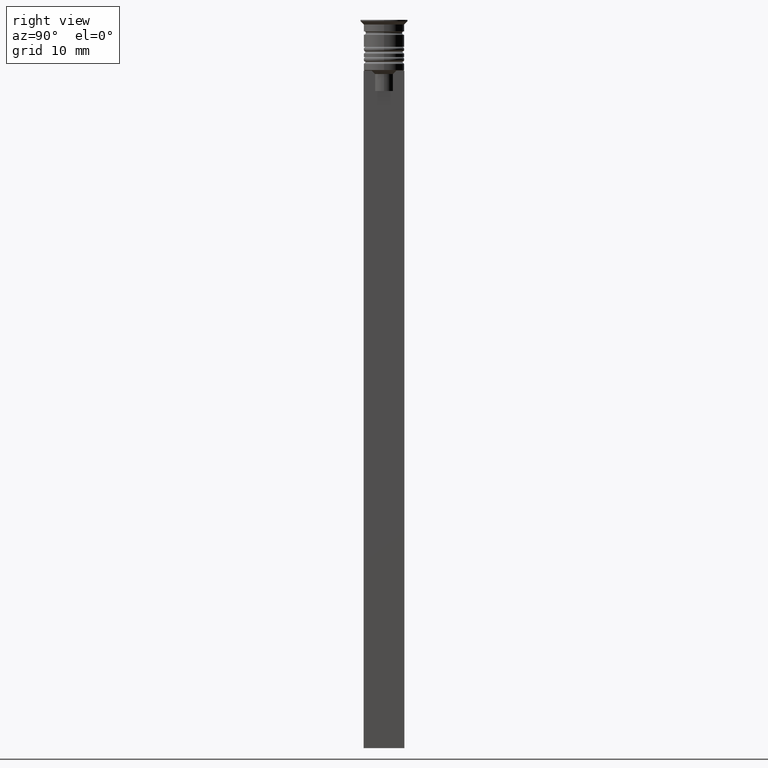
[diagram: clean part render]
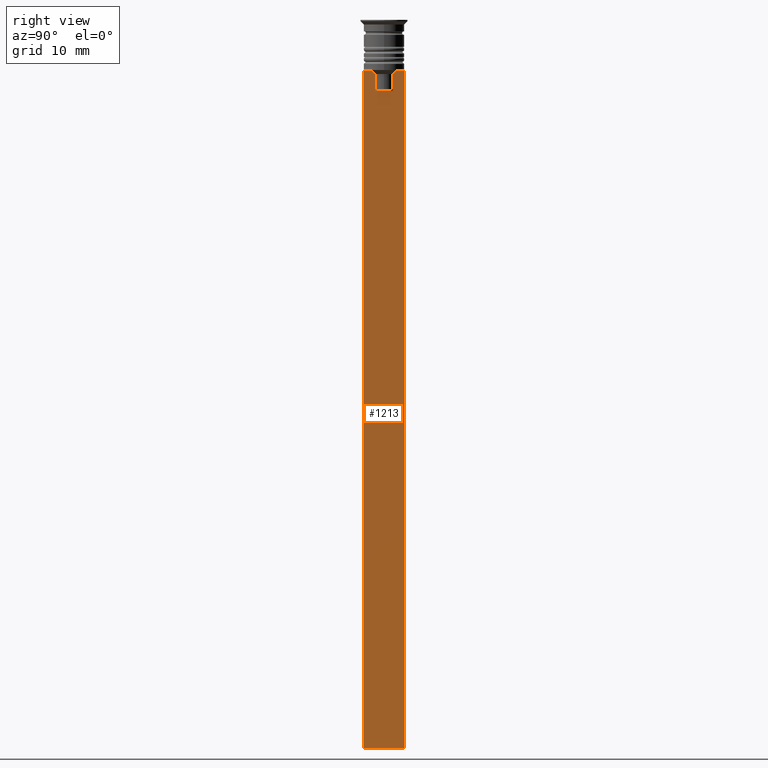
[diagram: same view with one face highlighted and labeled with its STEP entity id]
A machine part, right view. The second image highlights one B-rep face of the part: STEP entity #1213.
In plain terms, the highlighted planar face has unit normal (-1, 0, 0).
Its self-contained STEP definition (entity closure, byte-faithful):
#3 = VERTEX_POINT ( 'NONE', #1524 ) ;
#5 = CARTESIAN_POINT ( 'NONE',  ( 0.4999999999999998890, -1.307669683062199439, -10.49999999999999822 ) ) ;
#8 = DIRECTION ( 'NONE',  ( 0.000000000000000000, 0.000000000000000000, -1.000000000000000000 ) ) ;
#34 = CARTESIAN_POINT ( 'NONE',  ( 0.4999999999999998890, 1.307669683062199439, -8.000000000000000000 ) ) ;
#46 = ORIENTED_EDGE ( 'NONE', *, *, #1244, .T. ) ;
#49 = CARTESIAN_POINT ( 'NONE',  ( 0.4999999999999998890, -1.659011726860414093, -7.667884880598472286 ) ) ;
#119 = FACE_OUTER_BOUND ( 'NONE', #917, .T. ) ;
#126 = LINE ( 'NONE', #1191, #1708 ) ;
#148 = ORIENTED_EDGE ( 'NONE', *, *, #671, .T. ) ;
#154 = CARTESIAN_POINT ( 'NONE',  ( 0.4999999999999998890, -3.000000000000000000, -1.417237469701779329 ) ) ;
#172 = LINE ( 'NONE', #154, #1147 ) ;
#180 = ORIENTED_EDGE ( 'NONE', *, *, #301, .T. ) ;
#194 = CARTESIAN_POINT ( 'NONE',  ( 0.4999999999999998890, -3.000000000000000000, -107.5000000000000000 ) ) ;
#222 = CARTESIAN_POINT ( 'NONE',  ( 0.4999999999999998890, -1.484307477388859153, -7.835011508197190722 ) ) ;
#248 = VERTEX_POINT ( 'NONE', #572 ) ;
#254 = CARTESIAN_POINT ( 'NONE',  ( 0.4999999999999998890, -1.833030277982335754, -7.500000000000000000 ) ) ;
#301 = EDGE_CURVE ( 'NONE', #248, #939, #809, .T. ) ;
#306 = DIRECTION ( 'NONE',  ( 0.000000000000000000, -1.000000000000000000, 0.000000000000000000 ) ) ;
#330 = EDGE_CURVE ( 'NONE', #1102, #2124, #126, .T. ) ;
#334 = AXIS2_PLACEMENT_3D ( 'NONE', #1765, #649, #1180 ) ;
#385 = CARTESIAN_POINT ( 'NONE',  ( 0.4999999999999998890, -1.833030277982335754, -7.500000000000000000 ) ) ;
#392 = ORIENTED_EDGE ( 'NONE', *, *, #1391, .T. ) ;
#448 = VERTEX_POINT ( 'NONE', #465 ) ;
#465 = CARTESIAN_POINT ( 'NONE',  ( 0.4999999999999998890, -2.856571371417139904, -7.500000000000000000 ) ) ;
#468 = PLANE ( 'NONE',  #334 ) ;
#511 = DIRECTION ( 'NONE',  ( 0.000000000000000000, 0.000000000000000000, -1.000000000000000000 ) ) ;
#516 = DIRECTION ( 'NONE',  ( 0.000000000000000000, -1.000000000000000000, 0.000000000000000000 ) ) ;
#522 = CARTESIAN_POINT ( 'NONE',  ( 0.4999999999999998890, 1.307669683062199439, -10.49999999999999822 ) ) ;
#553 = EDGE_CURVE ( 'NONE', #1085, #980, #172, .T. ) ;
#554 = VERTEX_POINT ( 'NONE', #1212 ) ;
#565 = DIRECTION ( 'NONE',  ( 0.000000000000000000, -1.000000000000000000, 0.000000000000000000 ) ) ;
#572 = CARTESIAN_POINT ( 'NONE',  ( 0.4999999999999998890, 1.833030277982335754, -7.500000000000000000 ) ) ;
#594 = ORIENTED_EDGE ( 'NONE', *, *, #553, .T. ) ;
#603 = EDGE_CURVE ( 'NONE', #2282, #1737, #907, .T. ) ;
#632 = EDGE_CURVE ( 'NONE', #1102, #554, #1499, .T. ) ;
#649 = DIRECTION ( 'NONE',  ( -1.000000000000000000, 0.000000000000000000, 0.000000000000000000 ) ) ;
#653 = LINE ( 'NONE', #1202, #1233 ) ;
#656 = EDGE_CURVE ( 'NONE', #980, #554, #2199, .T. ) ;
#666 = CARTESIAN_POINT ( 'NONE',  ( 0.4999999999999998890, 1.307669683062199439, -8.000000000000000000 ) ) ;
#671 = EDGE_CURVE ( 'NONE', #1737, #3, #2037, .T. ) ;
#696 = EDGE_CURVE ( 'NONE', #3, #1336, #1400, .T. ) ;
#699 = VECTOR ( 'NONE', #1451, 1000.000000000000000 ) ;
#716 = CARTESIAN_POINT ( 'NONE',  ( 0.4999999999999998890, 1.307669683062199439, 0.000000000000000000 ) ) ;
#730 = CARTESIAN_POINT ( 'NONE',  ( 0.4999999999999998890, 1.399999999999997691, -10.49999999999999822 ) ) ;
#770 = CARTESIAN_POINT ( 'NONE',  ( 0.4999999999999998890, -3.000000000000000000, -7.500000000000000000 ) ) ;
#809 = B_SPLINE_CURVE_WITH_KNOTS ( 'NONE', 3,
 ( #1746, #1912, #1734, #666 ),
 .UNSPECIFIED., .F., .F.,
 ( 4, 4 ),
 ( 0.003278537493109848298, 0.004003794023484941178 ),
 .UNSPECIFIED. ) ;
#825 = ORIENTED_EDGE ( 'NONE', *, *, #330, .T. ) ;
#837 = DIRECTION ( 'NONE',  ( 0.000000000000000000, -1.000000000000000000, 0.000000000000000000 ) ) ;
#871 = ORIENTED_EDGE ( 'NONE', *, *, #656, .T. ) ;
#907 = LINE ( 'NONE', #730, #699 ) ;
#917 = EDGE_LOOP ( 'NONE', ( #46, #180, #392, #2113, #148, #2287, #1216, #1514, #594, #871, #2257, #825 ) ) ;
#939 = VERTEX_POINT ( 'NONE', #34 ) ;
#978 = CARTESIAN_POINT ( 'NONE',  ( 0.4999999999999998890, 3.000000000000000000, -7.500000000000000000 ) ) ;
#980 = VERTEX_POINT ( 'NONE', #194 ) ;
#998 = EDGE_CURVE ( 'NONE', #448, #1085, #1810, .T. ) ;
#999 = VECTOR ( 'NONE', #1121, 1000.000000000000000 ) ;
#1085 = VERTEX_POINT ( 'NONE', #770 ) ;
#1102 = VERTEX_POINT ( 'NONE', #978 ) ;
#1104 = CARTESIAN_POINT ( 'NONE',  ( 0.4999999999999998890, -1.307669683062199439, 0.000000000000000000 ) ) ;
#1121 = DIRECTION ( 'NONE',  ( 0.000000000000000000, 0.000000000000000000, -1.000000000000000000 ) ) ;
#1130 = CARTESIAN_POINT ( 'NONE',  ( 0.4999999999999998890, -3.000000000000000000, -107.5000000000000000 ) ) ;
#1147 = VECTOR ( 'NONE', #511, 1000.000000000000000 ) ;
#1180 = DIRECTION ( 'NONE',  ( 0.000000000000000000, 0.000000000000000000, 1.000000000000000000 ) ) ;
#1191 = CARTESIAN_POINT ( 'NONE',  ( 0.4999999999999998890, -3.000000000000000000, -7.500000000000000000 ) ) ;
#1202 = CARTESIAN_POINT ( 'NONE',  ( 0.4999999999999998890, -3.000000000000000000, -7.500000000000000000 ) ) ;
#1212 = CARTESIAN_POINT ( 'NONE',  ( 0.4999999999999998890, 3.000000000000000000, -107.5000000000000000 ) ) ;
#1213 = ADVANCED_FACE ( 'NONE', ( #119 ), #468, .F. ) ;
#1216 = ORIENTED_EDGE ( 'NONE', *, *, #2059, .T. ) ;
#1233 = VECTOR ( 'NONE', #837, 1000.000000000000000 ) ;
#1244 = EDGE_CURVE ( 'NONE', #2124, #248, #1915, .T. ) ;
#1273 = CARTESIAN_POINT ( 'NONE',  ( 0.4999999999999998890, -1.307669683062199439, -8.000000000000000000 ) ) ;
#1336 = VERTEX_POINT ( 'NONE', #385 ) ;
#1354 = CARTESIAN_POINT ( 'NONE',  ( 0.4999999999999998890, 2.856571371417139904, -7.500000000000000000 ) ) ;
#1391 = EDGE_CURVE ( 'NONE', #939, #2282, #2139, .T. ) ;
#1400 = B_SPLINE_CURVE_WITH_KNOTS ( 'NONE', 3,
 ( #1273, #222, #49, #254 ),
 .UNSPECIFIED., .F., .F.,
 ( 4, 4 ),
 ( 0.007225659348748082224, 0.007950554640278054835 ),
 .UNSPECIFIED. ) ;
#1451 = DIRECTION ( 'NONE',  ( 0.000000000000000000, -1.000000000000000000, 0.000000000000000000 ) ) ;
#1499 = LINE ( 'NONE', #2210, #999 ) ;
#1510 = DIRECTION ( 'NONE',  ( 0.000000000000000000, 1.000000000000000000, 0.000000000000000000 ) ) ;
#1514 = ORIENTED_EDGE ( 'NONE', *, *, #998, .T. ) ;
#1524 = CARTESIAN_POINT ( 'NONE',  ( 0.4999999999999998890, -1.307669683062199439, -8.000000000000000000 ) ) ;
#1550 = CARTESIAN_POINT ( 'NONE',  ( 0.4999999999999998890, -3.000000000000000000, -7.500000000000000000 ) ) ;
#1708 = VECTOR ( 'NONE', #306, 1000.000000000000000 ) ;
#1734 = CARTESIAN_POINT ( 'NONE',  ( 0.4999999999999998890, 1.484355510416485835, -7.834966642958598015 ) ) ;
#1737 = VERTEX_POINT ( 'NONE', #5 ) ;
#1746 = CARTESIAN_POINT ( 'NONE',  ( 0.4999999999999998890, 1.833030277982335754, -7.500000000000000000 ) ) ;
#1753 = VECTOR ( 'NONE', #565, 1000.000000000000000 ) ;
#1765 = CARTESIAN_POINT ( 'NONE',  ( 0.4999999999999998890, -3.000000000000000000, -1.417237469701779329 ) ) ;
#1810 = LINE ( 'NONE', #2174, #1753 ) ;
#1867 = VECTOR ( 'NONE', #8, 1000.000000000000000 ) ;
#1912 = CARTESIAN_POINT ( 'NONE',  ( 0.4999999999999998890, 1.659046061654642967, -7.667851756010362507 ) ) ;
#1915 = LINE ( 'NONE', #1550, #1944 ) ;
#1944 = VECTOR ( 'NONE', #516, 1000.000000000000000 ) ;
#1974 = VECTOR ( 'NONE', #1510, 1000.000000000000000 ) ;
#2037 = LINE ( 'NONE', #1104, #2127 ) ;
#2059 = EDGE_CURVE ( 'NONE', #1336, #448, #653, .T. ) ;
#2113 = ORIENTED_EDGE ( 'NONE', *, *, #603, .T. ) ;
#2124 = VERTEX_POINT ( 'NONE', #1354 ) ;
#2127 = VECTOR ( 'NONE', #2187, 1000.000000000000000 ) ;
#2139 = LINE ( 'NONE', #716, #1867 ) ;
#2174 = CARTESIAN_POINT ( 'NONE',  ( 0.4999999999999998890, -3.000000000000000000, -7.500000000000000000 ) ) ;
#2187 = DIRECTION ( 'NONE',  ( -0.000000000000000000, -0.000000000000000000, 1.000000000000000000 ) ) ;
#2199 = LINE ( 'NONE', #1130, #1974 ) ;
#2210 = CARTESIAN_POINT ( 'NONE',  ( 0.4999999999999998890, 3.000000000000000000, -1.417237469701779329 ) ) ;
#2257 = ORIENTED_EDGE ( 'NONE', *, *, #632, .F. ) ;
#2282 = VERTEX_POINT ( 'NONE', #522 ) ;
#2287 = ORIENTED_EDGE ( 'NONE', *, *, #696, .T. ) ;